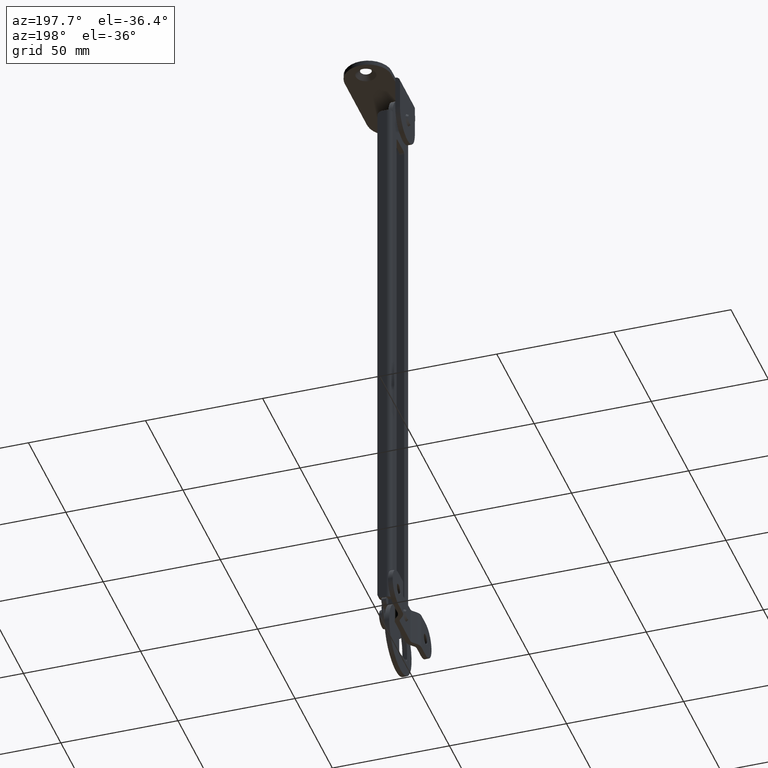
[diagram: clean part render]
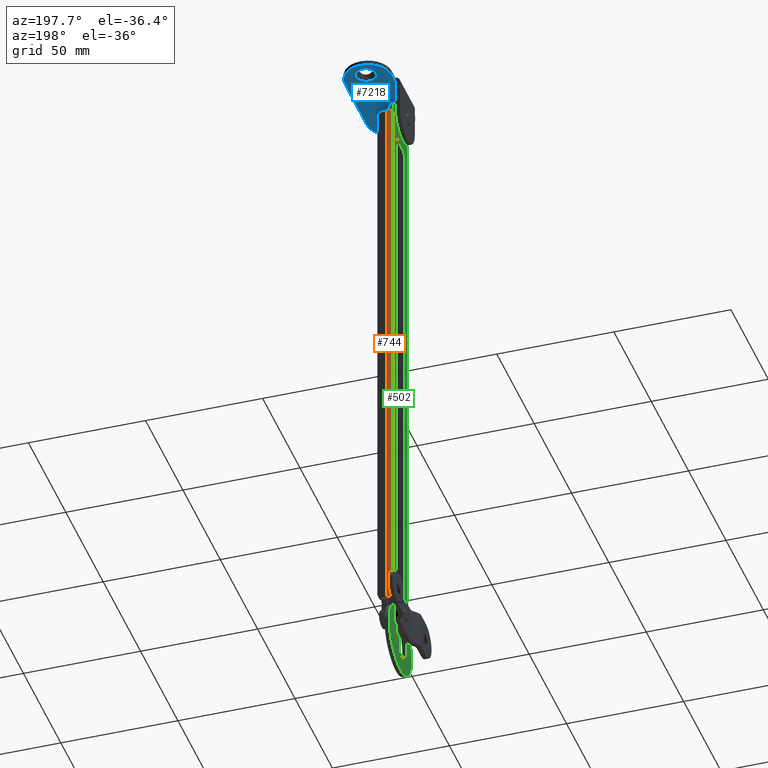
[diagram: same view with three faces highlighted in distinct colors, each labeled with its STEP entity id]
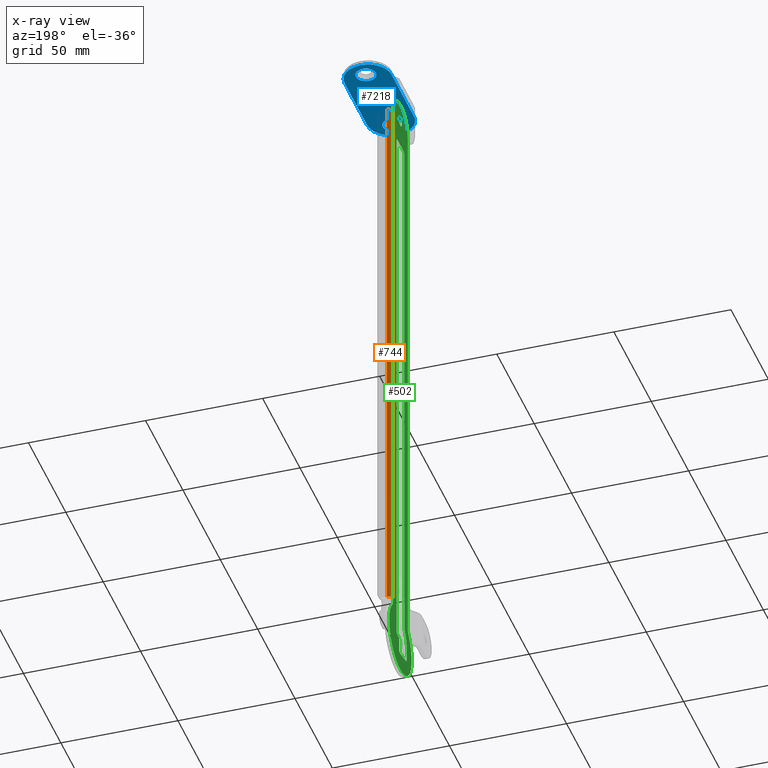
[diagram: x-ray of the same camera — body ghosted, the three highlighted faces saturated]
A machine part, auxiliary view with three faces highlighted in distinct colors.
The next image is the same camera in x-ray (body ghosted, the three faces saturated) — at least one of them is partly hidden behind the body in this view.
Their STEP definitions:

[orange] entity #744 — the highlighted face is a freeform B-spline surface patch.
#269=CARTESIAN_POINT('',(5.0,10.0,-2.0));
#270=VERTEX_POINT('',#269);
#284=CARTESIAN_POINT('',(5.0,10.0,-248.000014999999990));
#285=VERTEX_POINT('',#284);
#286=CARTESIAN_POINT('',(5.0,10.0,-248.000014999999990));
#287=CARTESIAN_POINT('',(5.0,10.0,-2.0));
#288=QUASI_UNIFORM_CURVE('',1,(#286,#287),.UNSPECIFIED.,.F.,.U.);
#289=EDGE_CURVE('',#285,#270,#288,.T.);
#697=CARTESIAN_POINT('',(5.000685350048881,9.947646103384251,-254.150015375000010));
#698=CARTESIAN_POINT('',(5.000685350048881,9.947646103384281,4.303750384375036));
#699=CARTESIAN_POINT('',(4.944542669470467,12.091648575485785,-254.150015375000040));
#700=CARTESIAN_POINT('',(4.944542669470467,12.091648575485813,4.303750384375036));
#701=CARTESIAN_POINT('',(7.087238774730842,11.998096443163540,-254.150015375000010));
#702=CARTESIAN_POINT('',(7.087238774730841,11.998096443163570,4.303750384375036));
#710=(BOUNDED_SURFACE()B_SPLINE_SURFACE(1,2,((#697,#699,#701),(#698,#700,#702)),.UNSPECIFIED.,.F.,.F.,.U.)B_SPLINE_SURFACE_WITH_KNOTS((2,2),(3,3),(0.0,258.453765759375070),(0.0,3.478498999687474),.UNSPECIFIED.)GEOMETRIC_REPRESENTATION_ITEM()RATIONAL_B_SPLINE_SURFACE(((1.0,0.681998360062498,1.0),(1.0,0.681998360062498,1.0)))REPRESENTATION_ITEM('')SURFACE());
#711=CARTESIAN_POINT('',(7.0,11.999999999999821,-2.0));
#712=VERTEX_POINT('',#711);
#713=CARTESIAN_POINT('',(5.0,10.0,-2.0));
#714=CARTESIAN_POINT('',(4.999927566030126,10.196335450163989,-1.999999999999998));
#715=CARTESIAN_POINT('',(5.063077583907196,10.621770866763381,-2.000000000000001));
#716=CARTESIAN_POINT('',(5.346690539893661,11.185415819760260,-2.000000000000001));
#717=CARTESIAN_POINT('',(5.744490655747272,11.582969024692320,-1.999999999999998));
#718=CARTESIAN_POINT('',(6.280364649030370,11.904239402033509,-2.000000000000004));
#719=CARTESIAN_POINT('',(6.705357201188689,12.000495053912211,-1.999999999999999));
#720=CARTESIAN_POINT('',(7.0,11.999999999999821,-2.0));
#721=B_SPLINE_CURVE_WITH_KNOTS('',3,(#713,#714,#715,#716,#717,#718,#719,#720),.UNSPECIFIED.,.F.,.U.,(4,1,1,1,1,4),(0.000000612373105,0.589074621095314,1.276446416478146,1.865461962510446,2.258228333946010,3.141907766615473),.UNSPECIFIED.);
#722=EDGE_CURVE('',#270,#712,#721,.T.);
#723=ORIENTED_EDGE('',*,*,#722,.T.);
#724=CARTESIAN_POINT('',(7.0,11.999999999999799,-248.000014999999990));
#725=VERTEX_POINT('',#724);
#726=CARTESIAN_POINT('',(7.0,11.999999999999821,-2.0));
#727=CARTESIAN_POINT('',(7.0,11.999999999999799,-248.000014999999990));
#728=QUASI_UNIFORM_CURVE('',1,(#726,#727),.UNSPECIFIED.,.F.,.U.);
#729=EDGE_CURVE('',#712,#725,#728,.T.);
#730=ORIENTED_EDGE('',*,*,#729,.T.);
#731=CARTESIAN_POINT('',(7.0,11.999999999999799,-248.000014999999990));
#732=CARTESIAN_POINT('',(6.639837865110784,12.000971968491649,-248.000015000000100));
#733=CARTESIAN_POINT('',(6.019049233866504,11.827464378670401,-248.000015000000100));
#734=CARTESIAN_POINT('',(5.426040923378213,11.289594198435820,-248.000014999999910));
#735=CARTESIAN_POINT('',(5.084750711386494,10.687049649990950,-248.000015000000190));
#736=CARTESIAN_POINT('',(4.999767464737349,10.261830203486870,-248.000014999999990));
#737=CARTESIAN_POINT('',(5.0,10.0,-248.000014999999990));
#738=B_SPLINE_CURVE_WITH_KNOTS('',3,(#731,#732,#733,#734,#735,#736,#737),.UNSPECIFIED.,.F.,.U.,(4,1,1,1,4),(0.000000612372503,1.080075592442005,1.865461962510260,2.356430978054804,3.141907766615519),.UNSPECIFIED.);
#739=EDGE_CURVE('',#725,#285,#738,.T.);
#740=ORIENTED_EDGE('',*,*,#739,.T.);
#741=ORIENTED_EDGE('',*,*,#289,.T.);
#742=EDGE_LOOP('',(#723,#730,#740,#741));
#743=FACE_OUTER_BOUND('',#742,.T.);
#744=ADVANCED_FACE('',(#743),#710,.T.);

[blue] entity #7218 — the highlighted face is a freeform B-spline surface patch.
#6267=CARTESIAN_POINT('',(16.959932131289101,21.119109748762948,13.000000029352700));
#6268=VERTEX_POINT('',#6267);
#6274=CARTESIAN_POINT('',(18.300007505960600,18.0,13.000000005960420));
#6275=VERTEX_POINT('',#6274);
#6276=CARTESIAN_POINT('',(16.959932131289101,21.119109748762948,13.000000029352700));
#6277=CARTESIAN_POINT('',(17.462176530379509,20.644508822614849,13.000000025793380));
#6278=CARTESIAN_POINT('',(18.106414770229939,19.635801630966419,13.000000018228331));
#6279=CARTESIAN_POINT('',(18.300236774545169,18.472581255586629,13.000000009504650));
#6280=CARTESIAN_POINT('',(18.300007505960600,18.0,13.000000005960420));
#6281=B_SPLINE_CURVE_WITH_KNOTS('',3,(#6276,#6277,#6278,#6279,#6280),.UNSPECIFIED.,.F.,.U.,(4,1,4),(0.000000170626483,2.072087259028504,3.489879321451052),.UNSPECIFIED.);
#6282=EDGE_CURVE('',#6268,#6275,#6281,.T.);
#6284=CARTESIAN_POINT('',(14.000007687395181,13.699999994039590,13.000000005960420));
#6285=VERTEX_POINT('',#6284);
#6286=CARTESIAN_POINT('',(18.300007505960600,18.0,13.000000005960420));
#6287=CARTESIAN_POINT('',(18.300197801447901,17.577832389799269,13.000000005960439));
#6288=CARTESIAN_POINT('',(18.185028973745428,16.804067124960589,13.000000005960400));
#6289=CARTESIAN_POINT('',(17.639649236458919,15.572273378042050,13.000000005960381));
#6290=CARTESIAN_POINT('',(16.845013277071470,14.695692375726679,13.000000005960560));
#6291=CARTESIAN_POINT('',(15.582222292650361,13.917562032763310,13.000000005960290));
#6292=CARTESIAN_POINT('',(14.668690709732550,13.698828851521750,13.000000005960430));
#6293=CARTESIAN_POINT('',(14.000007687395181,13.699999994039590,13.000000005960420));
#6294=B_SPLINE_CURVE_WITH_KNOTS('',3,(#6286,#6287,#6288,#6289,#6290,#6291,#6292,#6293),.UNSPECIFIED.,.F.,.U.,(4,1,1,1,1,4),(0.000000714130209,1.266459911803240,2.321908756337333,4.010491383864898,4.749319200484673,6.754593604452929),.UNSPECIFIED.);
#6295=EDGE_CURVE('',#6275,#6285,#6294,.T.);
#6297=CARTESIAN_POINT('',(11.040082868711250,14.880890251237039,13.000000029352689));
#6298=VERTEX_POINT('',#6297);
#6299=CARTESIAN_POINT('',(14.000007687395181,13.699999994039590,13.000000005960420));
#6300=CARTESIAN_POINT('',(13.489851167142371,13.699663483772721,13.000000009992171));
#6301=CARTESIAN_POINT('',(12.401940274724820,13.895972627168129,13.000000018590031));
#6302=CARTESIAN_POINT('',(11.459020200235420,14.482392893674120,13.000000026041780));
#6303=CARTESIAN_POINT('',(11.040082868711250,14.880890251237039,13.000000029352689));
#6304=B_SPLINE_CURVE_WITH_KNOTS('',3,(#6299,#6300,#6301,#6302,#6303),.UNSPECIFIED.,.F.,.U.,(4,1,4),(0.000000159396005,1.530381667579666,3.264715083937209),.UNSPECIFIED.);
#6305=EDGE_CURVE('',#6285,#6298,#6304,.T.);
#6398=CARTESIAN_POINT('',(9.700007494039761,18.0,13.000000005960420));
#6399=VERTEX_POINT('',#6398);
#6400=CARTESIAN_POINT('',(11.040082868711250,14.880890251237039,13.000000029352689));
#6401=CARTESIAN_POINT('',(10.644114558863540,15.255909831119849,13.000000026540180));
#6402=CARTESIAN_POINT('',(9.955516514820978,16.219515399128891,13.000000019313450));
#6403=CARTESIAN_POINT('',(9.699112923250302,17.381875036441748,13.000000010596150));
#6404=CARTESIAN_POINT('',(9.700007494039761,18.0,13.000000005960420));
#6405=B_SPLINE_CURVE_WITH_KNOTS('',3,(#6400,#6401,#6402,#6403,#6404),.UNSPECIFIED.,.F.,.U.,(4,1,4),(0.000000170626036,1.635922562079295,3.489879321451064),.UNSPECIFIED.);
#6406=EDGE_CURVE('',#6298,#6399,#6405,.T.);
#6408=CARTESIAN_POINT('',(14.000007312605129,22.300000005960420,13.000000005960420));
#6409=VERTEX_POINT('',#6408);
#6410=CARTESIAN_POINT('',(9.700007494039761,18.0,13.000000005960420));
#6411=CARTESIAN_POINT('',(9.699956645384416,18.351782191231440,13.000000005960411));
#6412=CARTESIAN_POINT('',(9.795383494265670,19.125754804938762,13.000000005960430));
#6413=CARTESIAN_POINT('',(10.217248566601381,20.144276741829319,13.000000005960430));
#6414=CARTESIAN_POINT('',(10.817513064392850,20.932865083378189,13.000000005960430));
#6415=CARTESIAN_POINT('',(11.610914631670600,21.634823231461979,13.000000005960390));
#6416=CARTESIAN_POINT('',(12.663150044606420,22.164431771355218,13.000000005960469));
#6417=CARTESIAN_POINT('',(13.577876130999510,22.300127253216960,13.000000005960400));
#6418=CARTESIAN_POINT('',(14.000007312605129,22.300000005960420,13.000000005960420));
#6419=B_SPLINE_CURVE_WITH_KNOTS('',3,(#6410,#6411,#6412,#6413,#6414,#6415,#6416,#6417,#6418),.UNSPECIFIED.,.F.,.U.,(4,1,1,1,1,1,4),(0.000000714131501,1.055389117178789,2.321908756337809,3.271860140683113,4.010491383865062,5.488134406660517,6.754593604452905),.UNSPECIFIED.);
#6420=EDGE_CURVE('',#6399,#6409,#6419,.T.);
#6422=CARTESIAN_POINT('',(14.000007312605129,22.300000005960420,13.000000005960420));
#6423=CARTESIAN_POINT('',(14.646357815722009,22.301064217263939,13.000000011068551));
#6424=CARTESIAN_POINT('',(15.733441598858750,22.049776443643459,13.000000019659710));
#6425=CARTESIAN_POINT('',(16.639375462003478,21.423545263813669,13.000000026819380));
#6426=CARTESIAN_POINT('',(16.959932131289101,21.119109748762948,13.000000029352700));
#6427=B_SPLINE_CURVE_WITH_KNOTS('',3,(#6422,#6423,#6424,#6425,#6426),.UNSPECIFIED.,.F.,.U.,(4,1,4),(0.000000159395531,1.938415635974084,3.264715083937267),.UNSPECIFIED.);
#6428=EDGE_CURVE('',#6409,#6268,#6427,.T.);
#6578=CARTESIAN_POINT('',(16.959924631288921,-14.880890251237060,13.000000029352700));
#6579=VERTEX_POINT('',#6578);
#6585=CARTESIAN_POINT('',(18.300000005960420,-18.0,13.000000005960420));
#6586=VERTEX_POINT('',#6585);
#6587=CARTESIAN_POINT('',(16.959924631288921,-14.880890251237060,13.000000029352700));
#6588=CARTESIAN_POINT('',(17.223697945823940,-15.131060319668320,13.000000027476480));
#6589=CARTESIAN_POINT('',(17.687122049725438,-15.698822556642410,13.000000023218490));
#6590=CARTESIAN_POINT('',(18.177269402241361,-16.764137797875510,13.000000015229030));
#6591=CARTESIAN_POINT('',(18.300191084817179,-17.563753746337149,13.000000009232080));
#6592=CARTESIAN_POINT('',(18.300000005960420,-18.0,13.000000005960420));
#6593=B_SPLINE_CURVE_WITH_KNOTS('',3,(#6587,#6588,#6589,#6590,#6591,#6592),.UNSPECIFIED.,.F.,.U.,(4,1,1,4),(0.000000170626970,1.090603180785185,2.181173678836236,3.489879321451062),.UNSPECIFIED.);
#6594=EDGE_CURVE('',#6579,#6586,#6593,.T.);
#6596=CARTESIAN_POINT('',(14.000000187395001,-22.300000005960420,13.000000005960420));
#6597=VERTEX_POINT('',#6596);
#6598=CARTESIAN_POINT('',(18.300000005960420,-18.0,13.000000005960420));
#6599=CARTESIAN_POINT('',(18.301170248563700,-18.668680702902421,13.000000005960430));
#6600=CARTESIAN_POINT('',(18.082486990818978,-19.582264879285059,13.000000005960411));
#6601=CARTESIAN_POINT('',(17.433717262016110,-20.634249072757228,13.000000005960430));
#6602=CARTESIAN_POINT('',(16.759375475505880,-21.360463725328099,13.000000005960400));
#6603=CARTESIAN_POINT('',(15.617750820970420,-22.083580251955080,13.000000005960430));
#6604=CARTESIAN_POINT('',(14.598169775080979,-22.300778261290318,13.000000005960411));
#6605=CARTESIAN_POINT('',(14.000000187395001,-22.300000005960420,13.000000005960420));
#6606=B_SPLINE_CURVE_WITH_KNOTS('',3,(#6598,#6599,#6600,#6601,#6602,#6603,#6604,#6605),.UNSPECIFIED.,.F.,.U.,(4,1,1,1,1,4),(0.000000714132422,2.005275118190067,2.744102934426794,3.693879830475748,4.960398521041400,6.754593604452928),.UNSPECIFIED.);
#6607=EDGE_CURVE('',#6586,#6597,#6606,.T.);
#6609=CARTESIAN_POINT('',(11.040075368711070,-21.119109748762959,13.000000029352689));
#6610=VERTEX_POINT('',#6609);
#6611=CARTESIAN_POINT('',(14.000000187395001,-22.300000005960420,13.000000005960420));
#6612=CARTESIAN_POINT('',(13.353649549057771,-22.301097276474039,13.000000011068510));
#6613=CARTESIAN_POINT('',(12.266554980192121,-22.049760426283932,13.000000019659881));
#6614=CARTESIAN_POINT('',(11.360644032555360,-21.423537467860019,13.000000026819210));
#6615=CARTESIAN_POINT('',(11.040075368711070,-21.119109748762959,13.000000029352689));
#6616=B_SPLINE_CURVE_WITH_KNOTS('',3,(#6611,#6612,#6613,#6614,#6615),.UNSPECIFIED.,.F.,.U.,(4,1,4),(0.000000159395688,1.938415635974101,3.264715083937218),.UNSPECIFIED.);
#6617=EDGE_CURVE('',#6597,#6610,#6616,.T.);
#6709=CARTESIAN_POINT('',(9.699999994039581,-18.0,13.000000005960420));
#6710=VERTEX_POINT('',#6709);
#6711=CARTESIAN_POINT('',(11.040075368711070,-21.119109748762959,13.000000029352689));
#6712=CARTESIAN_POINT('',(10.644158307590390,-20.744052188109560,13.000000026539871));
#6713=CARTESIAN_POINT('',(9.955450175404225,-19.780534634942988,13.000000019313839));
#6714=CARTESIAN_POINT('',(9.699105763217274,-18.618110146734121,13.000000010596040));
#6715=CARTESIAN_POINT('',(9.699999994039581,-18.0,13.000000005960420));
#6716=B_SPLINE_CURVE_WITH_KNOTS('',3,(#6711,#6712,#6713,#6714,#6715),.UNSPECIFIED.,.F.,.U.,(4,1,4),(0.000000170626956,1.635922562079693,3.489879321451062),.UNSPECIFIED.);
#6717=EDGE_CURVE('',#6610,#6710,#6716,.T.);
#6719=CARTESIAN_POINT('',(13.999999812604949,-13.699999994039590,13.000000005960420));
#6720=VERTEX_POINT('',#6719);
#6721=CARTESIAN_POINT('',(9.699999994039581,-18.0,13.000000005960420));
#6722=CARTESIAN_POINT('',(9.699872518175543,-17.577858070029549,13.000000005960439));
#6723=CARTESIAN_POINT('',(9.835645259096117,-16.663216689115529,13.000000005960400));
#6724=CARTESIAN_POINT('',(10.509380765463909,-15.323591205877770,13.000000005960420));
#6725=CARTESIAN_POINT('',(11.625532802386010,-14.312129857591170,13.000000005960500));
#6726=CARTESIAN_POINT('',(12.874285145797570,-13.795437197143469,13.000000005960340));
#6727=CARTESIAN_POINT('',(13.648220183473541,-13.699950121619040,13.000000005960450));
#6728=CARTESIAN_POINT('',(13.999999812604949,-13.699999994039590,13.000000005960420));
#6729=B_SPLINE_CURVE_WITH_KNOTS('',3,(#6721,#6722,#6723,#6724,#6725,#6726,#6727,#6728),.UNSPECIFIED.,.F.,.U.,(4,1,1,1,1,4),(0.000000714130991,1.266459911803659,2.744102934426318,4.432685562407922,5.699205201492224,6.754593604452905),.UNSPECIFIED.);
#6730=EDGE_CURVE('',#6710,#6720,#6729,.T.);
#6732=CARTESIAN_POINT('',(13.999999812604949,-13.699999994039590,13.000000005960420));
#6733=CARTESIAN_POINT('',(14.510159908073501,-13.699627800861039,13.000000009992210));
#6734=CARTESIAN_POINT('',(15.598084241779150,-13.895973747880999,13.000000018590100));
#6735=CARTESIAN_POINT('',(16.540953715766761,-14.482433548720429,13.000000026041571));
#6736=CARTESIAN_POINT('',(16.959924631288921,-14.880890251237060,13.000000029352700));
#6737=B_SPLINE_CURVE_WITH_KNOTS('',3,(#6732,#6733,#6734,#6735,#6736),.UNSPECIFIED.,.F.,.U.,(4,1,4),(0.000000159395492,1.530381667579345,3.264715083937253),.UNSPECIFIED.);
#6738=EDGE_CURVE('',#6720,#6579,#6737,.T.);
#7056=CARTESIAN_POINT('',(4.000000000000116,-10.0,13.0));
#7057=VERTEX_POINT('',#7056);
#7058=CARTESIAN_POINT('',(4.000000000000085,10.0,13.0));
#7059=VERTEX_POINT('',#7058);
#7060=CARTESIAN_POINT('',(4.000000000000116,-10.0,13.0));
#7061=CARTESIAN_POINT('',(4.000000000000085,10.0,13.0));
#7062=QUASI_UNIFORM_CURVE('',1,(#7060,#7061),.UNSPECIFIED.,.F.,.U.);
#7063=EDGE_CURVE('',#7057,#7059,#7062,.T.);
#7118=CARTESIAN_POINT('',(3.001000038763969,-27.497499903089540,13.0));
#7119=CARTESIAN_POINT('',(24.999000497677919,-27.497499903089540,13.0));
#7120=CARTESIAN_POINT('',(3.001000038763969,27.497501244194051,13.0));
#7121=CARTESIAN_POINT('',(24.999000497677919,27.497501244194051,13.0));
#7122=B_SPLINE_SURFACE_WITH_KNOTS('',1,1,((#7118,#7120),(#7119,#7121)),.UNSPECIFIED.,.F.,.F.,.U.,(2,2),(2,2),(0.0,21.998000458913950),(0.0,54.995001147283588),.UNSPECIFIED.);
#7123=CARTESIAN_POINT('',(4.000000000000116,15.0,13.0));
#7124=VERTEX_POINT('',#7123);
#7125=CARTESIAN_POINT('',(14.000003719754661,24.999999999999311,13.0));
#7126=VERTEX_POINT('',#7125);
#7127=CARTESIAN_POINT('',(4.000000000000116,15.0,13.0));
#7128=CARTESIAN_POINT('',(3.999791797578305,15.818129465970550,13.000000000000020));
#7129=CARTESIAN_POINT('',(4.191843035531380,17.372456210294839,12.999999999999980));
#7130=CARTESIAN_POINT('',(4.966139653856776,19.455681427043039,13.000000000000020));
#7131=CARTESIAN_POINT('',(6.197543661824947,21.400467375947819,13.0));
#7132=CARTESIAN_POINT('',(7.852008582339400,23.014888750708678,13.0));
#7133=CARTESIAN_POINT('',(9.950020638537326,24.237527335735010,12.999999999999989));
#7134=CARTESIAN_POINT('',(11.995603915748729,24.871692404496549,13.000000000000041));
#7135=CARTESIAN_POINT('',(13.386417222594140,25.000041123386190,12.999999999999931));
#7136=CARTESIAN_POINT('',(14.000003719754661,24.999999999999311,13.0));
#7137=B_SPLINE_CURVE_WITH_KNOTS('',3,(#7127,#7128,#7129,#7130,#7131,#7132,#7133,#7134,#7135,#7136),.UNSPECIFIED.,.F.,.U.,(4,1,1,1,1,1,1,4),(0.000000398175564,2.454341557405131,4.663336522221812,6.626927906849089,9.326581155844959,11.535607428851160,13.867289623664030,15.708063925316971),.UNSPECIFIED.);
#7138=EDGE_CURVE('',#7124,#7126,#7137,.T.);
#7139=ORIENTED_EDGE('',*,*,#7138,.T.);
#7140=CARTESIAN_POINT('',(24.0,15.0,13.0));
#7141=VERTEX_POINT('',#7140);
#7142=CARTESIAN_POINT('',(14.000003719754661,24.999999999999311,13.0));
#7143=CARTESIAN_POINT('',(15.186456754093850,25.001047969481320,13.000000000000091));
#7144=CARTESIAN_POINT('',(16.944690065239111,24.683116770245530,12.999999999999860));
#7145=CARTESIAN_POINT('',(19.171562675880359,23.629618835472758,13.000000000000080));
#7146=CARTESIAN_POINT('',(21.030328004661619,22.269354076934398,12.999999999999920));
#7147=CARTESIAN_POINT('',(22.593762597115582,20.340053401382139,13.000000000000069));
#7148=CARTESIAN_POINT('',(23.727730861253910,17.781348436304910,13.000000000000030));
#7149=CARTESIAN_POINT('',(24.000475462925639,16.022694726501889,13.000000000000060));
#7150=CARTESIAN_POINT('',(24.0,15.0,13.0));
#7151=B_SPLINE_CURVE_WITH_KNOTS('',3,(#7142,#7143,#7144,#7145,#7146,#7147,#7148,#7149,#7150),.UNSPECIFIED.,.F.,.U.,(4,1,1,1,1,1,4),(0.000000399476569,3.558853313722482,5.276969627213926,7.363222447430236,10.431102157713720,12.640104870696470,15.708059732260351),.UNSPECIFIED.);
#7152=EDGE_CURVE('',#7126,#7141,#7151,.T.);
#7153=ORIENTED_EDGE('',*,*,#7152,.T.);
#7154=CARTESIAN_POINT('',(24.0,-15.0,13.0));
#7155=VERTEX_POINT('',#7154);
#7156=CARTESIAN_POINT('',(24.0,-15.0,13.0));
#7157=CARTESIAN_POINT('',(24.0,15.0,13.0));
#7158=QUASI_UNIFORM_CURVE('',1,(#7156,#7157),.UNSPECIFIED.,.F.,.U.);
#7159=EDGE_CURVE('',#7155,#7141,#7158,.T.);
#7160=ORIENTED_EDGE('',*,*,#7159,.F.);
#7161=CARTESIAN_POINT('',(13.999996280245471,-24.999999999999311,13.0));
#7162=VERTEX_POINT('',#7161);
#7163=CARTESIAN_POINT('',(24.0,-15.0,13.0));
#7164=CARTESIAN_POINT('',(24.001045764735402,-16.186450913168699,13.000000000000099));
#7165=CARTESIAN_POINT('',(23.683121954493981,-17.944695307402320,12.999999999999829));
#7166=CARTESIAN_POINT('',(22.629638978484529,-20.171588842476801,13.000000000000121));
#7167=CARTESIAN_POINT('',(21.317821473076449,-21.963800850040080,12.999999999999931));
#7168=CARTESIAN_POINT('',(19.570215092201011,-23.415990513551140,13.0));
#7169=CARTESIAN_POINT('',(17.067225976385231,-24.656702290500590,13.000000000000080));
#7170=CARTESIAN_POINT('',(15.227383420912251,-25.001018861940040,12.999999999999870));
#7171=CARTESIAN_POINT('',(13.999996280245471,-24.999999999999311,13.0));
#7172=B_SPLINE_CURVE_WITH_KNOTS('',3,(#7163,#7164,#7165,#7166,#7167,#7168,#7169,#7170,#7171),.UNSPECIFIED.,.F.,.U.,(4,1,1,1,1,1,4),(0.000000398180378,3.558854262715773,5.276971034802582,7.363224415351750,10.185667851285000,12.026488709631900,15.708063925316960),.UNSPECIFIED.);
#7173=EDGE_CURVE('',#7155,#7162,#7172,.T.);
#7174=ORIENTED_EDGE('',*,*,#7173,.T.);
#7175=CARTESIAN_POINT('',(4.000000000000116,-15.0,13.0));
#7176=VERTEX_POINT('',#7175);
#7177=CARTESIAN_POINT('',(13.999996280245471,-24.999999999999311,13.0));
#7178=CARTESIAN_POINT('',(12.813533790096511,-25.001035767879451,12.999999999999980));
#7179=CARTESIAN_POINT('',(10.973558681481700,-24.668310404789981,13.000000000000020));
#7180=CARTESIAN_POINT('',(8.535477666167386,-23.478391754436242,12.999999999999980));
#7181=CARTESIAN_POINT('',(6.933350273833778,-22.179902414397599,13.000000000000041));
#7182=CARTESIAN_POINT('',(5.563977391554914,-20.490130104238649,12.999999999999980));
#7183=CARTESIAN_POINT('',(4.373839940397904,-18.230929227856869,13.000000000000160));
#7184=CARTESIAN_POINT('',(3.998877003809851,-16.227357842749750,12.999999999999931));
#7185=CARTESIAN_POINT('',(4.000000000000116,-15.0,13.0));
#7186=B_SPLINE_CURVE_WITH_KNOTS('',3,(#7177,#7178,#7179,#7180,#7181,#7182,#7183,#7184,#7185),.UNSPECIFIED.,.F.,.U.,(4,1,1,1,1,1,4),(0.000000399475093,3.558853313721109,5.522410362912604,8.099430822950936,9.694803926492492,12.026485499997840,15.708059732260351),.UNSPECIFIED.);
#7187=EDGE_CURVE('',#7162,#7176,#7186,.T.);
#7188=ORIENTED_EDGE('',*,*,#7187,.T.);
#7189=CARTESIAN_POINT('',(4.000000000000116,-15.0,13.0));
#7190=CARTESIAN_POINT('',(4.000000000000116,-10.0,13.0));
#7191=QUASI_UNIFORM_CURVE('',1,(#7189,#7190),.UNSPECIFIED.,.F.,.U.);
#7192=EDGE_CURVE('',#7176,#7057,#7191,.T.);
#7193=ORIENTED_EDGE('',*,*,#7192,.T.);
#7194=ORIENTED_EDGE('',*,*,#7063,.T.);
#7195=CARTESIAN_POINT('',(4.000000000000085,10.0,13.0));
#7196=CARTESIAN_POINT('',(4.000000000000116,15.0,13.0));
#7197=QUASI_UNIFORM_CURVE('',1,(#7195,#7196),.UNSPECIFIED.,.F.,.U.);
#7198=EDGE_CURVE('',#7059,#7124,#7197,.T.);
#7199=ORIENTED_EDGE('',*,*,#7198,.T.);
#7200=EDGE_LOOP('',(#7139,#7153,#7160,#7174,#7188,#7193,#7194,#7199));
#7201=FACE_OUTER_BOUND('',#7200,.T.);
#7202=ORIENTED_EDGE('',*,*,#6730,.F.);
#7203=ORIENTED_EDGE('',*,*,#6717,.F.);
#7204=ORIENTED_EDGE('',*,*,#6617,.F.);
#7205=ORIENTED_EDGE('',*,*,#6607,.F.);
#7206=ORIENTED_EDGE('',*,*,#6594,.F.);
#7207=ORIENTED_EDGE('',*,*,#6738,.F.);
#7208=EDGE_LOOP('',(#7202,#7203,#7204,#7205,#7206,#7207));
#7209=FACE_BOUND('',#7208,.T.);
#7210=ORIENTED_EDGE('',*,*,#6420,.F.);
#7211=ORIENTED_EDGE('',*,*,#6406,.F.);
#7212=ORIENTED_EDGE('',*,*,#6305,.F.);
#7213=ORIENTED_EDGE('',*,*,#6295,.F.);
#7214=ORIENTED_EDGE('',*,*,#6282,.F.);
#7215=ORIENTED_EDGE('',*,*,#6428,.F.);
#7216=EDGE_LOOP('',(#7210,#7211,#7212,#7213,#7214,#7215));
#7217=FACE_BOUND('',#7216,.T.);
#7218=ADVANCED_FACE('',(#7201,#7209,#7217),#7122,.F.);

[green] entity #502 — the highlighted face is a freeform B-spline surface patch.
#23=CARTESIAN_POINT('',(5.0,-1.999999999982564,3.774772E-015));
#24=VERTEX_POINT('',#23);
#25=CARTESIAN_POINT('',(4.999999999722926,-1.474555963598617,1.351182086062462));
#26=VERTEX_POINT('',#25);
#27=CARTESIAN_POINT('',(5.0,-1.999999999982564,3.774772E-015));
#28=CARTESIAN_POINT('',(4.999999999955636,-2.000094871195923,0.216357927824369));
#29=CARTESIAN_POINT('',(4.999999999854242,-1.918998712259077,0.710817334200403));
#30=CARTESIAN_POINT('',(4.999999999764939,-1.662783761389454,1.146299692756297));
#31=CARTESIAN_POINT('',(4.999999999722926,-1.474555963598617,1.351182086062462));
#32=B_SPLINE_CURVE_WITH_KNOTS('',3,(#27,#28,#29,#30,#31),.UNSPECIFIED.,.F.,.U.,(4,1,4),(0.000000256023056,0.649125906905781,1.483663729757609),.UNSPECIFIED.);
#33=EDGE_CURVE('',#24,#26,#32,.T.);
#74=CARTESIAN_POINT('',(4.999999999722925,1.474555963598616,-1.351182086062461));
#75=VERTEX_POINT('',#74);
#81=CARTESIAN_POINT('',(5.0,0.0,-2.0));
#82=VERTEX_POINT('',#81);
#83=CARTESIAN_POINT('',(4.999999999722925,1.474555963598616,-1.351182086062461));
#84=CARTESIAN_POINT('',(4.999999999762327,1.264873023266998,-1.580881560307550));
#85=CARTESIAN_POINT('',(4.999999999850740,0.794374324280670,-1.898506845634393));
#86=CARTESIAN_POINT('',(4.999999999954553,0.241827757344796,-2.000193392997683));
#87=CARTESIAN_POINT('',(5.0,0.0,-2.0));
#88=B_SPLINE_CURVE_WITH_KNOTS('',3,(#83,#84,#85,#86,#87),.UNSPECIFIED.,.F.,.U.,(4,1,4),(0.000000224046187,0.932763934624118,1.658248557303174),.UNSPECIFIED.);
#89=EDGE_CURVE('',#75,#82,#88,.T.);
#91=CARTESIAN_POINT('',(5.0,0.0,-2.0));
#92=CARTESIAN_POINT('',(5.000000000000003,-0.360169447842156,-2.000967579238798));
#93=CARTESIAN_POINT('',(4.999999999999992,-0.980929917525164,-1.827454127705368));
#94=CARTESIAN_POINT('',(5.000000000000010,-1.549262918330080,-1.312020806867865));
#95=CARTESIAN_POINT('',(4.999999999999990,-1.904231948698941,-0.719625513808344));
#96=CARTESIAN_POINT('',(5.000000000000009,-2.000489607082805,-0.294633242936179));
#97=CARTESIAN_POINT('',(5.0,-1.999999999982564,3.774772E-015));
#98=B_SPLINE_CURVE_WITH_KNOTS('',3,(#91,#92,#93,#94,#95,#96,#97),.UNSPECIFIED.,.F.,.U.,(4,1,1,1,4),(0.000000612372676,1.080075592437441,1.865461962502230,2.258228333936158,3.141907766601938),.UNSPECIFIED.);
#99=EDGE_CURVE('',#82,#24,#98,.T.);
#122=CARTESIAN_POINT('',(5.0,0.0,2.0));
#123=VERTEX_POINT('',#122);
#124=CARTESIAN_POINT('',(4.999999999722926,-1.474555963598617,1.351182086062462));
#125=CARTESIAN_POINT('',(4.999999999762323,-1.264878675680691,1.580911101117692));
#126=CARTESIAN_POINT('',(4.999999999850735,-0.794396309743495,1.898495450845310));
#127=CARTESIAN_POINT('',(4.999999999954556,-0.241810911231100,2.000205215078200));
#128=CARTESIAN_POINT('',(5.0,0.0,2.0));
#129=B_SPLINE_CURVE_WITH_KNOTS('',3,(#124,#125,#126,#127,#128),.UNSPECIFIED.,.F.,.U.,(4,1,4),(0.000000224046179,0.932763934624115,1.658248557303176),.UNSPECIFIED.);
#130=EDGE_CURVE('',#26,#123,#129,.T.);
#132=CARTESIAN_POINT('',(5.0,1.999999999982564,3.774772E-015));
#133=VERTEX_POINT('',#132);
#134=CARTESIAN_POINT('',(5.0,0.0,2.0));
#135=CARTESIAN_POINT('',(5.000000000000001,0.294622123221126,2.000483783301139));
#136=CARTESIAN_POINT('',(5.000000000000002,0.785013579893911,1.889441160891542));
#137=CARTESIAN_POINT('',(5.000000000000010,1.445534903317751,1.448567955295991));
#138=CARTESIAN_POINT('',(4.999999999999969,1.889327409523964,0.818071730384049));
#139=CARTESIAN_POINT('',(5.000000000000021,2.000240343250788,0.261813739457739));
#140=CARTESIAN_POINT('',(5.0,1.999999999982564,3.774772E-015));
#141=B_SPLINE_CURVE_WITH_KNOTS('',3,(#134,#135,#136,#137,#138,#139,#140),.UNSPECIFIED.,.F.,.U.,(4,1,1,1,4),(0.000000612372656,0.883680045038450,1.472789598124161,2.356430978044614,3.141907766601933),.UNSPECIFIED.);
#142=EDGE_CURVE('',#123,#133,#141,.T.);
#144=CARTESIAN_POINT('',(5.0,1.999999999982564,3.774772E-015));
#145=CARTESIAN_POINT('',(4.999999999955632,2.000116224668795,-0.216360132838685));
#146=CARTESIAN_POINT('',(4.999999999854246,1.918955288184111,-0.710812495874723));
#147=CARTESIAN_POINT('',(4.999999999764935,1.662811020485328,-1.146308227160225));
#148=CARTESIAN_POINT('',(4.999999999722925,1.474555963598616,-1.351182086062461));
#149=B_SPLINE_CURVE_WITH_KNOTS('',3,(#144,#145,#146,#147,#148),.UNSPECIFIED.,.F.,.U.,(4,1,4),(0.000000256023047,0.649125906905779,1.483663729757616),.UNSPECIFIED.);
#150=EDGE_CURVE('',#133,#75,#149,.T.);
#247=CARTESIAN_POINT('',(5.0,16.487146870850349,-291.235765196864520));
#248=CARTESIAN_POINT('',(5.0,-16.487188444868540,-291.235765196864520));
#249=CARTESIAN_POINT('',(5.0,16.487146870850349,22.235757841160041));
#250=CARTESIAN_POINT('',(5.0,-16.487188444868540,22.235757841160041));
#251=B_SPLINE_SURFACE_WITH_KNOTS('',1,1,((#247,#249),(#248,#250)),.UNSPECIFIED.,.F.,.F.,.U.,(2,2),(2,2),(0.0,32.974335315718889),(0.0,313.471523038024490),.UNSPECIFIED.);
#252=CARTESIAN_POINT('',(5.0,-10.0,-2.0));
#253=VERTEX_POINT('',#252);
#254=CARTESIAN_POINT('',(5.0,0.000003719754530,7.999999999999308));
#255=VERTEX_POINT('',#254);
#256=CARTESIAN_POINT('',(5.0,-10.0,-2.0));
#257=CARTESIAN_POINT('',(5.000000000000005,-10.000128133667110,-1.181897535154609));
#258=CARTESIAN_POINT('',(4.999999999999992,-9.783190213560411,0.577105771169582));
#259=CARTESIAN_POINT('',(5.000000000000024,-8.848639034040208,2.873060598484428));
#260=CARTESIAN_POINT('',(4.999999999999996,-7.584887628598543,4.598524006636041));
#261=CARTESIAN_POINT('',(4.999999999999995,-6.218374723488430,5.899472051090580));
#262=CARTESIAN_POINT('',(5.000000000000029,-4.398733162477735,7.099885583052651));
#263=CARTESIAN_POINT('',(4.999999999999940,-2.209012637496145,7.853033996351427));
#264=CARTESIAN_POINT('',(5.000000000000044,-0.613569973974795,8.000004028213480));
#265=CARTESIAN_POINT('',(5.0,0.000003719754530,7.999999999999308));
#266=B_SPLINE_CURVE_WITH_KNOTS('',3,(#256,#257,#258,#259,#260,#261,#262,#263,#264,#265),.UNSPECIFIED.,.F.,.U.,(4,1,1,1,1,1,1,4),(0.000000398176027,2.454341557405014,5.276971034798818,7.363224415348844,8.835701265028000,10.921987894567669,13.867289623663689,15.708063925317051),.UNSPECIFIED.);
#267=EDGE_CURVE('',#253,#255,#266,.T.);
#268=ORIENTED_EDGE('',*,*,#267,.T.);
#269=CARTESIAN_POINT('',(5.0,10.0,-2.0));
#270=VERTEX_POINT('',#269);
#271=CARTESIAN_POINT('',(5.0,0.000003719754530,7.999999999999308));
#272=CARTESIAN_POINT('',(4.999999999999986,0.736313133562130,8.000147812495412));
#273=CARTESIAN_POINT('',(5.000000000000030,2.127040689469530,7.845659464082003));
#274=CARTESIAN_POINT('',(4.999999999999958,4.117603754055474,7.188207710746962));
#275=CARTESIAN_POINT('',(5.000000000000060,5.722333060679499,6.265981459004251));
#276=CARTESIAN_POINT('',(4.999999999999928,7.134640966935788,5.077577489954768));
#277=CARTESIAN_POINT('',(5.000000000000054,8.378480427547666,3.599446202522247));
#278=CARTESIAN_POINT('',(4.999999999999957,9.626282914126380,1.230938243192529));
#279=CARTESIAN_POINT('',(5.000000000000015,10.000984523213919,-0.772662242662694));
#280=CARTESIAN_POINT('',(5.0,10.0,-2.0));
#281=B_SPLINE_CURVE_WITH_KNOTS('',3,(#271,#272,#273,#274,#275,#276,#277,#278,#279,#280),.UNSPECIFIED.,.F.,.U.,(4,1,1,1,1,1,1,4),(0.000000399473436,2.208892569716713,4.172459290573487,6.258703936938151,7.731429535798763,9.694803926492551,12.026485499998380,15.708059732260439),.UNSPECIFIED.);
#282=EDGE_CURVE('',#255,#270,#281,.T.);
#283=ORIENTED_EDGE('',*,*,#282,.T.);
#284=CARTESIAN_POINT('',(5.0,10.0,-248.000014999999990));
#285=VERTEX_POINT('',#284);
#286=CARTESIAN_POINT('',(5.0,10.0,-248.000014999999990));
#287=CARTESIAN_POINT('',(5.0,10.0,-2.0));
#288=QUASI_UNIFORM_CURVE('',1,(#286,#287),.UNSPECIFIED.,.F.,.U.);
#289=EDGE_CURVE('',#285,#270,#288,.T.);
#290=ORIENTED_EDGE('',*,*,#289,.F.);
#291=CARTESIAN_POINT('',(5.0,10.0,-250.819675112500990));
#292=VERTEX_POINT('',#291);
#293=CARTESIAN_POINT('',(5.0,10.0,-248.000014999999990));
#294=CARTESIAN_POINT('',(5.0,10.0,-250.819675112500990));
#295=QUASI_UNIFORM_CURVE('',1,(#293,#294),.UNSPECIFIED.,.F.,.U.);
#296=EDGE_CURVE('',#285,#292,#295,.T.);
#297=ORIENTED_EDGE('',*,*,#296,.T.);
#298=CARTESIAN_POINT('',(5.0,0.000000011056169,-277.000014999999910));
#299=VERTEX_POINT('',#298);
#300=CARTESIAN_POINT('',(5.0,10.0,-250.819675112500990));
#301=CARTESIAN_POINT('',(5.000000000000015,11.053753298684100,-251.761388583432790));
#302=CARTESIAN_POINT('',(4.999999999999992,12.646329238172340,-253.654677185209490));
#303=CARTESIAN_POINT('',(4.999999999999998,14.060959626047810,-256.547833591561190));
#304=CARTESIAN_POINT('',(5.000000000000012,14.807031694631361,-259.184345482745530));
#305=CARTESIAN_POINT('',(5.000000000000011,15.057840132381299,-261.536850409151330));
#306=CARTESIAN_POINT('',(5.000000000000008,14.920289217536860,-264.082489672727380));
#307=CARTESIAN_POINT('',(4.999999999999960,14.417637614084009,-266.394213212461580));
#308=CARTESIAN_POINT('',(5.000000000000037,13.497930674431821,-268.672007690498110));
#309=CARTESIAN_POINT('',(4.999999999999979,12.102516043452860,-271.030045758239110));
#310=CARTESIAN_POINT('',(5.000000000000012,10.262152117599440,-273.077089417691520));
#311=CARTESIAN_POINT('',(4.999999999999996,8.065232719615990,-274.714647090089500));
#312=CARTESIAN_POINT('',(5.000000000000003,6.064394312789508,-275.781661635343480));
#313=CARTESIAN_POINT('',(5.0,3.391420055098914,-276.724759358552090));
#314=CARTESIAN_POINT('',(5.000000000000003,1.319010342596288,-277.000478669378820));
#315=CARTESIAN_POINT('',(5.0,0.000000011056169,-277.000014999999910));
#316=B_SPLINE_CURVE_WITH_KNOTS('',3,(#300,#301,#302,#303,#304,#305,#306,#307,#308,#309,#310,#311,#312,#313,#314,#315),.UNSPECIFIED.,.F.,.U.,(4,1,1,1,1,1,1,1,1,1,1,1,1,4),(0.000000438166694,4.239581270127012,7.348723111797657,9.609930037599856,12.436413311108749,14.414980611590810,17.241409460234490,19.502391272165330,21.763567611989568,25.437998994484321,27.699186974222659,29.960398099703959,32.221603100579010,36.178510082667408),.UNSPECIFIED.);
#317=EDGE_CURVE('',#292,#299,#316,.T.);
#318=ORIENTED_EDGE('',*,*,#317,.T.);
#319=CARTESIAN_POINT('',(5.0,-10.0,-250.819675112500990));
#320=VERTEX_POINT('',#319);
#321=CARTESIAN_POINT('',(5.0,0.000000011056169,-277.000014999999910));
#322=CARTESIAN_POINT('',(5.000000000000004,-1.224762849346121,-277.000301214373220));
#323=CARTESIAN_POINT('',(4.999999999999993,-3.674216161034962,-276.698435194926670));
#324=CARTESIAN_POINT('',(5.000000000000004,-6.863253333563574,-275.470910403397280));
#325=CARTESIAN_POINT('',(5.000000000000001,-9.863416738020707,-273.487916274367880));
#326=CARTESIAN_POINT('',(4.999999999999992,-12.136259699798099,-271.053641377987280));
#327=CARTESIAN_POINT('',(5.000000000000004,-13.862407608249059,-268.007195110425070));
#328=CARTESIAN_POINT('',(4.999999999999996,-14.869781878564060,-264.845221203307970));
#329=CARTESIAN_POINT('',(5.000000000000003,-15.097433950855009,-261.721137909230890));
#330=CARTESIAN_POINT('',(5.000000000000002,-14.708543887264540,-258.627457862940900));
#331=CARTESIAN_POINT('',(4.999999999999994,-13.889837742960690,-256.102000465203900));
#332=CARTESIAN_POINT('',(5.000000000000012,-12.344330433514450,-253.285769565462290));
#333=CARTESIAN_POINT('',(4.999999999999994,-10.983406098296630,-251.698695643929800));
#334=CARTESIAN_POINT('',(5.0,-10.0,-250.819675112500990));
#335=B_SPLINE_CURVE_WITH_KNOTS('',3,(#321,#322,#323,#324,#325,#326,#327,#328,#329,#330,#331,#332,#333,#334),.UNSPECIFIED.,.F.,.U.,(4,1,1,1,1,1,1,1,1,1,1,4),(0.000000438269510,3.674298795514453,7.348723116376188,10.175220815735090,14.414980620467119,17.241409470824241,20.632966025908701,24.307421296999589,26.568587564066821,29.960398118027179,32.221603120280882,36.178510104780862),.UNSPECIFIED.);
#336=EDGE_CURVE('',#299,#320,#335,.T.);
#337=ORIENTED_EDGE('',*,*,#336,.T.);
#338=CARTESIAN_POINT('',(5.0,-10.0,-248.000014999999990));
#339=VERTEX_POINT('',#338);
#340=CARTESIAN_POINT('',(5.0,-10.0,-250.819675112500990));
#341=CARTESIAN_POINT('',(5.0,-10.0,-248.000014999999990));
#342=QUASI_UNIFORM_CURVE('',1,(#340,#341),.UNSPECIFIED.,.F.,.U.);
#343=EDGE_CURVE('',#320,#339,#342,.T.);
#344=ORIENTED_EDGE('',*,*,#343,.T.);
#345=CARTESIAN_POINT('',(5.0,-10.0,-2.0));
#346=CARTESIAN_POINT('',(5.0,-10.0,-248.000014999999990));
#347=QUASI_UNIFORM_CURVE('',1,(#345,#346),.UNSPECIFIED.,.F.,.U.);
#348=EDGE_CURVE('',#253,#339,#347,.T.);
#349=ORIENTED_EDGE('',*,*,#348,.F.);
#350=EDGE_LOOP('',(#268,#283,#290,#297,#318,#337,#344,#349));
#351=FACE_OUTER_BOUND('',#350,.T.);
#352=CARTESIAN_POINT('',(5.0,-5.100006000000180,-13.0));
#353=VERTEX_POINT('',#352);
#354=CARTESIAN_POINT('',(5.0,-4.100005999999950,-12.0));
#355=VERTEX_POINT('',#354);
#356=CARTESIAN_POINT('',(5.0,-5.100006000000180,-13.0));
#357=CARTESIAN_POINT('',(5.0,-5.100306842611360,-12.836314429476751));
#358=CARTESIAN_POINT('',(5.000000000000001,-5.021983047911760,-12.525796490793420));
#359=CARTESIAN_POINT('',(5.0,-4.671714937492841,-12.119217100018350));
#360=CARTESIAN_POINT('',(4.999999999999998,-4.312943501711269,-11.999131197278860));
#361=CARTESIAN_POINT('',(5.0,-4.100005999999950,-12.0));
#362=B_SPLINE_CURVE_WITH_KNOTS('',3,(#356,#357,#358,#359,#360,#361),.UNSPECIFIED.,.F.,.U.,(4,1,1,4),(0.000001361274931,0.490937338280211,0.932730097958573,1.570953883735583),.UNSPECIFIED.);
#363=EDGE_CURVE('',#353,#355,#362,.T.);
#364=ORIENTED_EDGE('',*,*,#363,.F.);
#365=CARTESIAN_POINT('',(5.0,-5.100006000000240,-251.648218885323500));
#366=VERTEX_POINT('',#365);
#367=CARTESIAN_POINT('',(5.0,-5.100006000000240,-251.648218885323500));
#368=CARTESIAN_POINT('',(5.0,-5.100006000000180,-13.0));
#369=QUASI_UNIFORM_CURVE('',1,(#367,#368),.UNSPECIFIED.,.F.,.U.);
#370=EDGE_CURVE('',#366,#353,#369,.T.);
#371=ORIENTED_EDGE('',*,*,#370,.F.);
#372=CARTESIAN_POINT('',(5.0,-5.575004375000240,-252.942193399658010));
#373=VERTEX_POINT('',#372);
#374=CARTESIAN_POINT('',(5.0,-5.100006000000240,-251.648218885323500));
#375=CARTESIAN_POINT('',(5.000000000000001,-5.099693928774517,-251.912132895720390));
#376=CARTESIAN_POINT('',(5.000000000000004,-5.194306845744923,-252.380922054582610));
#377=CARTESIAN_POINT('',(4.999999999999992,-5.442149119144999,-252.785763126721800));
#378=CARTESIAN_POINT('',(5.0,-5.575004375000240,-252.942193399658010));
#379=B_SPLINE_CURVE_WITH_KNOTS('',3,(#374,#375,#376,#377,#378),.UNSPECIFIED.,.F.,.U.,(4,1,4),(0.000000196653722,0.791624224370920,1.407366598745143),.UNSPECIFIED.);
#380=EDGE_CURVE('',#366,#373,#379,.T.);
#381=ORIENTED_EDGE('',*,*,#380,.T.);
#382=CARTESIAN_POINT('',(5.0,-8.899993000000000,-262.000015000000020));
#383=VERTEX_POINT('',#382);
#384=CARTESIAN_POINT('',(5.0,-8.899993000000000,-262.000015000000020));
#385=CARTESIAN_POINT('',(4.999999999999989,-8.900130959201084,-261.025190902213810));
#386=CARTESIAN_POINT('',(5.000000000000020,-8.690206856785515,-259.024289186657820));
#387=CARTESIAN_POINT('',(5.000000000000001,-7.654872884286667,-255.887259142817190));
#388=CARTESIAN_POINT('',(4.999999999999989,-6.405211320063627,-253.919963123108490));
#389=CARTESIAN_POINT('',(5.0,-5.575004375000240,-252.942193399658010));
#390=B_SPLINE_CURVE_WITH_KNOTS('',3,(#384,#385,#386,#387,#388,#389),.UNSPECIFIED.,.F.,.U.,(4,1,1,4),(0.000000072705843,2.924471958661767,6.002837904930775,9.850822666285270),.UNSPECIFIED.);
#391=EDGE_CURVE('',#383,#373,#390,.T.);
#392=ORIENTED_EDGE('',*,*,#391,.F.);
#393=CARTESIAN_POINT('',(5.0,-8.899992999998290,-265.380966628318500));
#394=VERTEX_POINT('',#393);
#395=CARTESIAN_POINT('',(5.0,-8.899992999998290,-265.380966628318500));
#396=CARTESIAN_POINT('',(5.0,-8.899993000000000,-262.000015000000020));
#397=QUASI_UNIFORM_CURVE('',1,(#395,#396),.UNSPECIFIED.,.F.,.U.);
#398=EDGE_CURVE('',#394,#383,#397,.T.);
#399=ORIENTED_EDGE('',*,*,#398,.F.);
#400=CARTESIAN_POINT('',(5.0,-7.316436000000230,-267.337143000000030));
#401=VERTEX_POINT('',#400);
#402=CARTESIAN_POINT('',(5.0,-7.316436000000230,-267.337143000000030));
#403=CARTESIAN_POINT('',(4.999999999999994,-7.510581802153338,-267.295887509359890));
#404=CARTESIAN_POINT('',(5.000000000000003,-7.913294724185121,-267.144859366942280));
#405=CARTESIAN_POINT('',(4.999999999999991,-8.428865854072377,-266.730192401842200));
#406=CARTESIAN_POINT('',(5.000000000000027,-8.806463094194704,-266.118001875409500));
#407=CARTESIAN_POINT('',(4.999999999999980,-8.900233174038597,-265.636208011264270));
#408=CARTESIAN_POINT('',(5.0,-8.899992999998290,-265.380966628318500));
#409=B_SPLINE_CURVE_WITH_KNOTS('',3,(#402,#403,#404,#405,#406,#407,#408),.UNSPECIFIED.,.F.,.U.,(4,1,1,1,4),(0.000000753576568,0.595488933170392,1.276138727296593,1.956638585815519,2.722300058865933),.UNSPECIFIED.);
#410=EDGE_CURVE('',#401,#394,#409,.T.);
#411=ORIENTED_EDGE('',*,*,#410,.F.);
#412=CARTESIAN_POINT('',(5.0,0.391790551787949,-268.978097772925480));
#413=VERTEX_POINT('',#412);
#414=CARTESIAN_POINT('',(5.0,0.391790551787949,-268.978097772925480));
#415=CARTESIAN_POINT('',(5.0,-7.316436000000230,-267.337143000000030));
#416=QUASI_UNIFORM_CURVE('',1,(#414,#415),.UNSPECIFIED.,.F.,.U.);
#417=EDGE_CURVE('',#413,#401,#416,.T.);
#418=ORIENTED_EDGE('',*,*,#417,.F.);
#419=CARTESIAN_POINT('',(5.0,1.600006999999915,-268.000015000000020));
#420=VERTEX_POINT('',#419);
#421=CARTESIAN_POINT('',(5.0,1.600006999999915,-268.000015000000020));
#422=CARTESIAN_POINT('',(4.999999999999998,1.600117086822729,-268.129851538001220));
#423=CARTESIAN_POINT('',(5.000000000000007,1.545120373078812,-268.408059220786530));
#424=CARTESIAN_POINT('',(4.999999999999989,1.326802192077948,-268.719179067097170));
#425=CARTESIAN_POINT('',(5.000000000000021,0.939388754515719,-268.982691314156630));
#426=CARTESIAN_POINT('',(4.999999999999980,0.609643196892477,-269.025571390683920));
#427=CARTESIAN_POINT('',(5.0,0.391790551787949,-268.978097772925480));
#428=B_SPLINE_CURVE_WITH_KNOTS('',3,(#421,#422,#423,#424,#425,#426,#427),.UNSPECIFIED.,.F.,.U.,(4,1,1,1,4),(0.000001906958546,0.389534000651905,0.834835709231681,1.112974944213105,1.780776827825634),.UNSPECIFIED.);
#429=EDGE_CURVE('',#420,#413,#428,.T.);
#430=ORIENTED_EDGE('',*,*,#429,.F.);
#431=CARTESIAN_POINT('',(5.0,1.600007000000030,-263.000015314159380));
#432=VERTEX_POINT('',#431);
#433=CARTESIAN_POINT('',(5.0,1.600007000000030,-263.000015314159380));
#434=CARTESIAN_POINT('',(5.0,1.600006999999915,-268.000015000000020));
#435=QUASI_UNIFORM_CURVE('',1,(#433,#434),.UNSPECIFIED.,.F.,.U.);
#436=EDGE_CURVE('',#432,#420,#435,.T.);
#437=ORIENTED_EDGE('',*,*,#436,.F.);
#438=CARTESIAN_POINT('',(5.0,2.600007000000000,-262.000015000000020));
#439=VERTEX_POINT('',#438);
#440=CARTESIAN_POINT('',(5.0,1.600007000000030,-263.000015314159380));
#441=CARTESIAN_POINT('',(5.000000000000001,1.599496424412895,-262.819908528978370));
#442=CARTESIAN_POINT('',(4.999999999999997,1.686322768802152,-262.509610821675100));
#443=CARTESIAN_POINT('',(5.000000000000006,2.044744971649238,-262.113869293535800));
#444=CARTESIAN_POINT('',(4.999999999999990,2.387023527435082,-261.999110859215020));
#445=CARTESIAN_POINT('',(5.0,2.600007000000000,-262.000015000000020));
#446=B_SPLINE_CURVE_WITH_KNOTS('',3,(#440,#441,#442,#443,#444,#445),.UNSPECIFIED.,.F.,.U.,(4,1,1,4),(0.000001360454605,0.540063819809947,0.932730203688280,1.570954060818135),.UNSPECIFIED.);
#447=EDGE_CURVE('',#432,#439,#446,.T.);
#448=ORIENTED_EDGE('',*,*,#447,.T.);
#449=CARTESIAN_POINT('',(5.0,4.100007052359825,-262.000015000000020));
#450=VERTEX_POINT('',#449);
#451=CARTESIAN_POINT('',(5.0,4.100007052359825,-262.000015000000020));
#452=CARTESIAN_POINT('',(5.0,2.600007000000000,-262.000015000000020));
#453=QUASI_UNIFORM_CURVE('',1,(#451,#452),.UNSPECIFIED.,.F.,.U.);
#454=EDGE_CURVE('',#450,#439,#453,.T.);
#455=ORIENTED_EDGE('',*,*,#454,.F.);
#456=CARTESIAN_POINT('',(5.0,5.100006999999771,-261.000015000000020));
#457=VERTEX_POINT('',#456);
#458=CARTESIAN_POINT('',(5.0,5.100006999999771,-261.000015000000020));
#459=CARTESIAN_POINT('',(5.0,5.100111638598439,-261.130912736406290));
#460=CARTESIAN_POINT('',(4.999999999999996,5.044695756543015,-261.409042261275090));
#461=CARTESIAN_POINT('',(5.000000000000006,4.832437111445930,-261.710525731817090));
#462=CARTESIAN_POINT('',(4.999999999999990,4.508809412995396,-261.938394407146920));
#463=CARTESIAN_POINT('',(5.000000000000005,4.263710773968215,-262.000328024173430));
#464=CARTESIAN_POINT('',(5.0,4.100007052359825,-262.000015000000020));
#465=B_SPLINE_CURVE_WITH_KNOTS('',3,(#458,#459,#460,#461,#462,#463,#464),.UNSPECIFIED.,.F.,.U.,(4,1,1,1,4),(0.000001361411576,0.392739484636333,0.834477614759817,1.080017886378606,1.570953854221191),.UNSPECIFIED.);
#466=EDGE_CURVE('',#457,#450,#465,.T.);
#467=ORIENTED_EDGE('',*,*,#466,.F.);
#468=CARTESIAN_POINT('',(5.0,5.100007000000000,-13.000000331612560));
#469=VERTEX_POINT('',#468);
#470=CARTESIAN_POINT('',(5.0,5.100007000000000,-13.000000331612560));
#471=CARTESIAN_POINT('',(5.0,5.100006999999771,-261.000015000000020));
#472=QUASI_UNIFORM_CURVE('',1,(#470,#471),.UNSPECIFIED.,.F.,.U.);
#473=EDGE_CURVE('',#469,#457,#472,.T.);
#474=ORIENTED_EDGE('',*,*,#473,.F.);
#475=CARTESIAN_POINT('',(5.0,4.100007000000000,-12.0));
#476=VERTEX_POINT('',#475);
#477=CARTESIAN_POINT('',(5.0,4.100007000000000,-12.0));
#478=CARTESIAN_POINT('',(5.000000000000004,4.280164898819439,-11.999478105661090));
#479=CARTESIAN_POINT('',(4.999999999999996,4.557601793065929,-12.077246150554590));
#480=CARTESIAN_POINT('',(5.000000000000008,4.890264121234658,-12.350054642909861));
#481=CARTESIAN_POINT('',(4.999999999999996,5.063732227102302,-12.656287919287029));
#482=CARTESIAN_POINT('',(5.000000000000002,5.100015685679372,-12.901847129682750));
#483=CARTESIAN_POINT('',(5.0,5.100007000000000,-13.000000331612560));
#484=B_SPLINE_CURVE_WITH_KNOTS('',3,(#477,#478,#479,#480,#481,#482,#483),.UNSPECIFIED.,.F.,.U.,(4,1,1,1,4),(0.000001360403346,0.540063823146916,0.834477729682234,1.276413751738316,1.570954070655939),.UNSPECIFIED.);
#485=EDGE_CURVE('',#476,#469,#484,.T.);
#486=ORIENTED_EDGE('',*,*,#485,.F.);
#487=CARTESIAN_POINT('',(5.0,-4.100005999999950,-12.0));
#488=CARTESIAN_POINT('',(5.0,4.100007000000000,-12.0));
#489=QUASI_UNIFORM_CURVE('',1,(#487,#488),.UNSPECIFIED.,.F.,.U.);
#490=EDGE_CURVE('',#355,#476,#489,.T.);
#491=ORIENTED_EDGE('',*,*,#490,.F.);
#492=EDGE_LOOP('',(#364,#371,#381,#392,#399,#411,#418,#430,#437,#448,#455,#467,#474,#486,#491));
#493=FACE_BOUND('',#492,.T.);
#494=ORIENTED_EDGE('',*,*,#142,.F.);
#495=ORIENTED_EDGE('',*,*,#130,.F.);
#496=ORIENTED_EDGE('',*,*,#33,.F.);
#497=ORIENTED_EDGE('',*,*,#99,.F.);
#498=ORIENTED_EDGE('',*,*,#89,.F.);
#499=ORIENTED_EDGE('',*,*,#150,.F.);
#500=EDGE_LOOP('',(#494,#495,#496,#497,#498,#499));
#501=FACE_BOUND('',#500,.T.);
#502=ADVANCED_FACE('',(#351,#493,#501),#251,.T.);